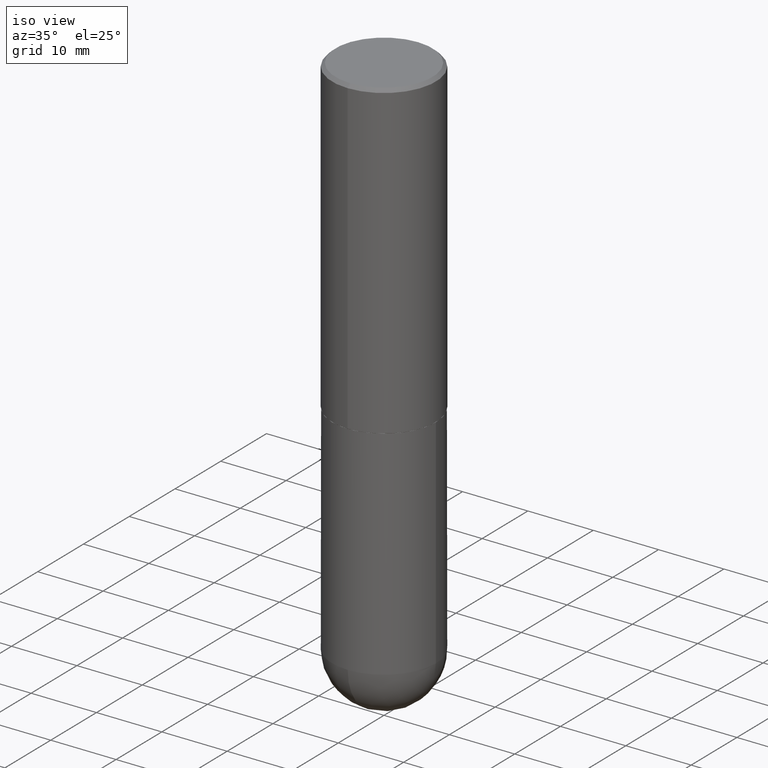
[diagram: clean part render]
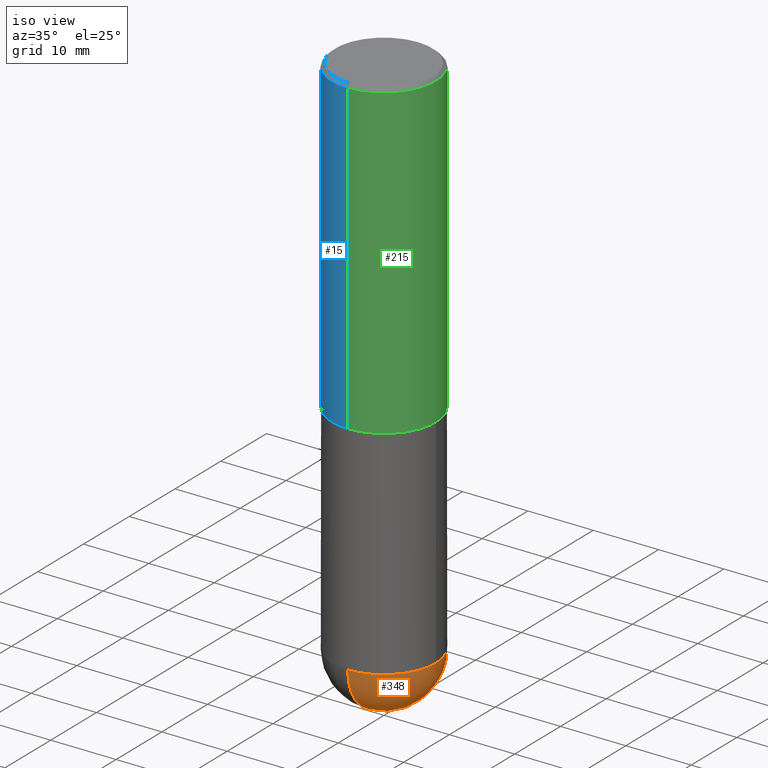
[diagram: same view with three faces highlighted in distinct colors, each labeled with its STEP entity id]
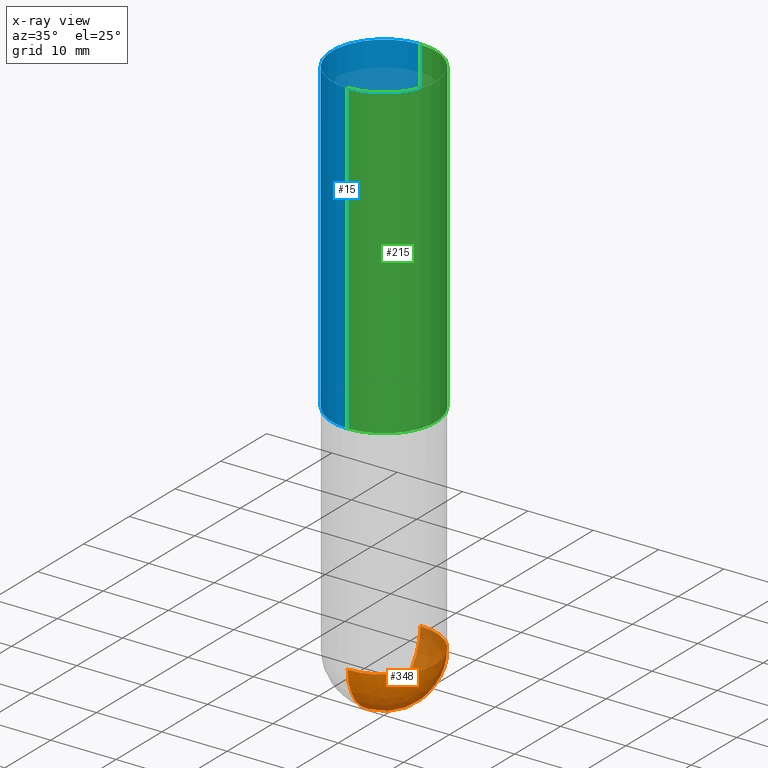
[diagram: x-ray of the same camera — body ghosted, the three highlighted faces saturated]
A machine part, iso view with three faces highlighted in distinct colors.
The next image is the same camera in x-ray (body ghosted, the three faces saturated) — at least one of them is partly hidden behind the body in this view.
Their STEP definitions:

[orange] entity #348 — the highlighted spherical surface has radius 7.9375 mm.
#7 = AXIS2_PLACEMENT_3D ( 'NONE', #32, #113, #191 ) ;
#13 = VERTEX_POINT ( 'NONE', #301 ) ;
#14 = DIRECTION ( 'NONE',  ( -1.000000000000000000, 6.982962677686265922E-15, -4.883557194083112901E-29 ) ) ;
#32 = CARTESIAN_POINT ( 'NONE',  ( 7.463812041801236655E-29, -1.160327913570257494E-14, -3.187500000000000000 ) ) ;
#42 = CARTESIAN_POINT ( 'NONE',  ( 7.463812041801236655E-29, -1.160327913570257494E-14, -3.187500000000000000 ) ) ;
#47 = VERTEX_POINT ( 'NONE', #154 ) ;
#62 = CARTESIAN_POINT ( 'NONE',  ( 7.463812041801236655E-29, -1.160327913570257494E-14, -3.187500000000000000 ) ) ;
#71 = VERTEX_POINT ( 'NONE', #120 ) ;
#87 = DIRECTION ( 'NONE',  ( 1.000000000000000000, -6.982962677686269077E-15, 0.000000000000000000 ) ) ;
#91 = EDGE_CURVE ( 'NONE', #71, #47, #135, .T. ) ;
#96 = AXIS2_PLACEMENT_3D ( 'NONE', #372, #169, #240 ) ;
#98 = FACE_OUTER_BOUND ( 'NONE', #211, .T. ) ;
#113 = DIRECTION ( 'NONE',  ( 1.000000000000000000, -6.982962677686265922E-15, 4.883557194083112340E-29 ) ) ;
#120 = CARTESIAN_POINT ( 'NONE',  ( -2.220446049250237350E-15, -0.3125000000000114908, -3.187499999999998668 ) ) ;
#121 = AXIS2_PLACEMENT_3D ( 'NONE', #62, #345, #186 ) ;
#135 = CIRCLE ( 'NONE', #264, 0.3125000000000000000 ) ;
#140 = EDGE_CURVE ( 'NONE', #276, #71, #379, .T. ) ;
#149 = EDGE_CURVE ( 'NONE', #276, #13, #179, .T. ) ;
#154 = CARTESIAN_POINT ( 'NONE',  ( 0.3125000000000000000, -1.101998797572367239E-14, -3.187500000000000000 ) ) ;
#169 = DIRECTION ( 'NONE',  ( -2.445468806185136597E-29, 3.491481338843145583E-15, 1.000000000000000000 ) ) ;
#170 = ORIENTED_EDGE ( 'NONE', *, *, #140, .F. ) ;
#173 = ORIENTED_EDGE ( 'NONE', *, *, #91, .F. ) ;
#179 = CIRCLE ( 'NONE', #7, 0.3125000000000002776 ) ;
#186 = DIRECTION ( 'NONE',  ( -7.105427357601000281E-15, -1.000000000000000000, 0.000000000000000000 ) ) ;
#191 = DIRECTION ( 'NONE',  ( 6.982962677686265922E-15, 1.000000000000000000, 0.000000000000000000 ) ) ;
#196 = CARTESIAN_POINT ( 'NONE',  ( 8.241383017002520278E-29, -1.267523194785438148E-14, -3.500000000000000444 ) ) ;
#211 = EDGE_LOOP ( 'NONE', ( #170, #359, #270, #173 ) ) ;
#240 = DIRECTION ( 'NONE',  ( 1.000000000000000000, -6.982962677686269077E-15, 0.000000000000000000 ) ) ;
#257 = DIRECTION ( 'NONE',  ( 6.982962677686265922E-15, 1.000000000000000000, -3.496765431890253764E-15 ) ) ;
#264 = AXIS2_PLACEMENT_3D ( 'NONE', #283, #286, #87 ) ;
#270 = ORIENTED_EDGE ( 'NONE', *, *, #392, .F. ) ;
#276 = VERTEX_POINT ( 'NONE', #196 ) ;
#283 = CARTESIAN_POINT ( 'NONE',  ( 7.794931819715121781E-29, -1.112909676756252622E-14, -3.187500000000000000 ) ) ;
#286 = DIRECTION ( 'NONE',  ( -2.445468806185136597E-29, 3.491481338843145583E-15, 1.000000000000000000 ) ) ;
#301 = CARTESIAN_POINT ( 'NONE',  ( 2.182175836777035261E-15, 0.3124999999999887867, -3.187500000000000888 ) ) ;
#308 = CIRCLE ( 'NONE', #96, 0.3125000000000000000 ) ;
#324 = SPHERICAL_SURFACE ( 'NONE', #401, 0.3125000000000002776 ) ;
#345 = DIRECTION ( 'NONE',  ( -1.000000000000000000, 7.105427357601001070E-15, -4.926315508542082329E-29 ) ) ;
#348 = ADVANCED_FACE ( 'NONE', ( #98 ), #324, .T. ) ;
#359 = ORIENTED_EDGE ( 'NONE', *, *, #149, .T. ) ;
#372 = CARTESIAN_POINT ( 'NONE',  ( 7.794931819715121781E-29, -1.112909676756252622E-14, -3.187500000000000000 ) ) ;
#379 = CIRCLE ( 'NONE', #121, 0.3125000000000002776 ) ;
#392 = EDGE_CURVE ( 'NONE', #47, #13, #308, .T. ) ;
#401 = AXIS2_PLACEMENT_3D ( 'NONE', #42, #14, #257 ) ;

[blue] entity #15 — the highlighted cylindrical surface (partial cylindrical patch) has radius 7.9375 mm, axis along (-0, 0, 1).
#8 = CIRCLE ( 'NONE', #352, 0.3125000000000000000 ) ;
#10 = DIRECTION ( 'NONE',  ( -2.444001851767069414E-29, 3.493582101063678231E-15, 1.000000000000000000 ) ) ;
#15 = ADVANCED_FACE ( 'NONE', ( #75 ), #204, .T. ) ;
#20 = EDGE_LOOP ( 'NONE', ( #309, #111, #304, #207 ) ) ;
#29 = CARTESIAN_POINT ( 'NONE',  ( -2.182175836776959136E-15, -0.3125000000000001665, 1.091744406582400014E-15 ) ) ;
#35 = CARTESIAN_POINT ( 'NONE',  ( 4.580059470211486852E-29, -6.546972857393332440E-15, -1.873999999999999666 ) ) ;
#41 = AXIS2_PLACEMENT_3D ( 'NONE', #35, #225, #114 ) ;
#68 = LINE ( 'NONE', #131, #213 ) ;
#75 = FACE_OUTER_BOUND ( 'NONE', #20, .T. ) ;
#80 = VERTEX_POINT ( 'NONE', #214 ) ;
#100 = VECTOR ( 'NONE', #150, 39.37007874015748143 ) ;
#111 = ORIENTED_EDGE ( 'NONE', *, *, #132, .T. ) ;
#114 = DIRECTION ( 'NONE',  ( -6.982962677686265922E-15, -1.000000000000000000, 3.496765431890254553E-15 ) ) ;
#131 = CARTESIAN_POINT ( 'NONE',  ( 2.220446049250313475E-15, 0.3125000000000001665, -1.091744406582400014E-15 ) ) ;
#132 = EDGE_CURVE ( 'NONE', #334, #373, #185, .T. ) ;
#143 = CARTESIAN_POINT ( 'NONE',  ( -2.182175836776913776E-15, -0.3125000000000067724, -1.873999999999998556 ) ) ;
#150 = DIRECTION ( 'NONE',  ( -2.444001851767069134E-29, 3.493582101063678231E-15, 1.000000000000000000 ) ) ;
#151 = EDGE_CURVE ( 'NONE', #373, #80, #384, .T. ) ;
#156 = DIRECTION ( 'NONE',  ( -6.982962677686265133E-15, -1.000000000000000000, 3.493582101063678231E-15 ) ) ;
#162 = DIRECTION ( 'NONE',  ( -6.982962677686265133E-15, -1.000000000000000000, 3.496765431890256920E-15 ) ) ;
#185 = CIRCLE ( 'NONE', #41, 0.3125000000000002220 ) ;
#204 = CYLINDRICAL_SURFACE ( 'NONE', #229, 0.3125000000000001665 ) ;
#207 = ORIENTED_EDGE ( 'NONE', *, *, #226, .F. ) ;
#213 = VECTOR ( 'NONE', #396, 39.37007874015748143 ) ;
#214 = CARTESIAN_POINT ( 'NONE',  ( -2.143905624303602824E-15, -0.3125000000000000555, -0.01999999999999897693 ) ) ;
#225 = DIRECTION ( 'NONE',  ( -2.444001851767069414E-29, 3.493582101063678231E-15, 1.000000000000000000 ) ) ;
#226 = EDGE_CURVE ( 'NONE', #235, #80, #8, .T. ) ;
#229 = AXIS2_PLACEMENT_3D ( 'NONE', #243, #253, #156 ) ;
#235 = VERTEX_POINT ( 'NONE', #390 ) ;
#243 = CARTESIAN_POINT ( 'NONE',  ( 0.000000000000000000, 0.000000000000000000, 0.000000000000000000 ) ) ;
#253 = DIRECTION ( 'NONE',  ( -2.444001851767069414E-29, 3.493582101063678231E-15, 1.000000000000000000 ) ) ;
#296 = CARTESIAN_POINT ( 'NONE',  ( 4.888003703534155364E-31, -6.987164202127379586E-17, -0.02000000000000006981 ) ) ;
#304 = ORIENTED_EDGE ( 'NONE', *, *, #151, .T. ) ;
#309 = ORIENTED_EDGE ( 'NONE', *, *, #362, .F. ) ;
#323 = CARTESIAN_POINT ( 'NONE',  ( 2.220446049250337141E-15, 0.3124999999999936717, -1.874000000000000776 ) ) ;
#334 = VERTEX_POINT ( 'NONE', #323 ) ;
#352 = AXIS2_PLACEMENT_3D ( 'NONE', #296, #10, #162 ) ;
#362 = EDGE_CURVE ( 'NONE', #334, #235, #68, .T. ) ;
#373 = VERTEX_POINT ( 'NONE', #143 ) ;
#384 = LINE ( 'NONE', #29, #100 ) ;
#390 = CARTESIAN_POINT ( 'NONE',  ( 2.182175836776958741E-15, 0.3124999999999999445, -0.02000000000000116268 ) ) ;
#396 = DIRECTION ( 'NONE',  ( -2.444001851767069134E-29, 3.493582101063678231E-15, 1.000000000000000000 ) ) ;

[green] entity #215 — the highlighted cylindrical surface (partial cylindrical patch) has radius 7.9375 mm, axis along (-0, 0, 1).
#12 = CARTESIAN_POINT ( 'NONE',  ( 0.000000000000000000, 0.000000000000000000, 0.000000000000000000 ) ) ;
#29 = CARTESIAN_POINT ( 'NONE',  ( -2.182175836776959136E-15, -0.3125000000000001665, 1.091744406582400014E-15 ) ) ;
#36 = EDGE_CURVE ( 'NONE', #373, #334, #127, .T. ) ;
#40 = DIRECTION ( 'NONE',  ( -2.444001851767069414E-29, 3.493582101063678231E-15, 1.000000000000000000 ) ) ;
#68 = LINE ( 'NONE', #131, #213 ) ;
#80 = VERTEX_POINT ( 'NONE', #214 ) ;
#81 = EDGE_LOOP ( 'NONE', ( #366, #241, #281, #355 ) ) ;
#92 = CYLINDRICAL_SURFACE ( 'NONE', #339, 0.3125000000000001665 ) ;
#94 = DIRECTION ( 'NONE',  ( -6.982962677686265133E-15, -1.000000000000000000, 3.493582101063678231E-15 ) ) ;
#100 = VECTOR ( 'NONE', #150, 39.37007874015748143 ) ;
#119 = DIRECTION ( 'NONE',  ( -2.444001851767069414E-29, 3.493582101063678231E-15, 1.000000000000000000 ) ) ;
#127 = CIRCLE ( 'NONE', #318, 0.3125000000000002220 ) ;
#131 = CARTESIAN_POINT ( 'NONE',  ( 2.220446049250313475E-15, 0.3125000000000001665, -1.091744406582400014E-15 ) ) ;
#133 = DIRECTION ( 'NONE',  ( -6.982962677686265133E-15, -1.000000000000000000, 3.496765431890256920E-15 ) ) ;
#143 = CARTESIAN_POINT ( 'NONE',  ( -2.182175836776913776E-15, -0.3125000000000067724, -1.873999999999998556 ) ) ;
#150 = DIRECTION ( 'NONE',  ( -2.444001851767069134E-29, 3.493582101063678231E-15, 1.000000000000000000 ) ) ;
#151 = EDGE_CURVE ( 'NONE', #373, #80, #384, .T. ) ;
#167 = CARTESIAN_POINT ( 'NONE',  ( 4.888003703534155364E-31, -6.987164202127379586E-17, -0.02000000000000006981 ) ) ;
#213 = VECTOR ( 'NONE', #396, 39.37007874015748143 ) ;
#214 = CARTESIAN_POINT ( 'NONE',  ( -2.143905624303602824E-15, -0.3125000000000000555, -0.01999999999999897693 ) ) ;
#215 = ADVANCED_FACE ( 'NONE', ( #292 ), #92, .T. ) ;
#217 = DIRECTION ( 'NONE',  ( -6.982962677686265922E-15, -1.000000000000000000, 3.496765431890254553E-15 ) ) ;
#235 = VERTEX_POINT ( 'NONE', #390 ) ;
#241 = ORIENTED_EDGE ( 'NONE', *, *, #362, .T. ) ;
#281 = ORIENTED_EDGE ( 'NONE', *, *, #409, .F. ) ;
#289 = CARTESIAN_POINT ( 'NONE',  ( 4.580059470211486852E-29, -6.546972857393332440E-15, -1.873999999999999666 ) ) ;
#292 = FACE_OUTER_BOUND ( 'NONE', #81, .T. ) ;
#298 = DIRECTION ( 'NONE',  ( -2.444001851767069414E-29, 3.493582101063678231E-15, 1.000000000000000000 ) ) ;
#318 = AXIS2_PLACEMENT_3D ( 'NONE', #289, #119, #217 ) ;
#323 = CARTESIAN_POINT ( 'NONE',  ( 2.220446049250337141E-15, 0.3124999999999936717, -1.874000000000000776 ) ) ;
#334 = VERTEX_POINT ( 'NONE', #323 ) ;
#339 = AXIS2_PLACEMENT_3D ( 'NONE', #12, #40, #94 ) ;
#355 = ORIENTED_EDGE ( 'NONE', *, *, #151, .F. ) ;
#360 = AXIS2_PLACEMENT_3D ( 'NONE', #167, #298, #133 ) ;
#362 = EDGE_CURVE ( 'NONE', #334, #235, #68, .T. ) ;
#366 = ORIENTED_EDGE ( 'NONE', *, *, #36, .T. ) ;
#373 = VERTEX_POINT ( 'NONE', #143 ) ;
#380 = CIRCLE ( 'NONE', #360, 0.3125000000000000000 ) ;
#384 = LINE ( 'NONE', #29, #100 ) ;
#390 = CARTESIAN_POINT ( 'NONE',  ( 2.182175836776958741E-15, 0.3124999999999999445, -0.02000000000000116268 ) ) ;
#396 = DIRECTION ( 'NONE',  ( -2.444001851767069134E-29, 3.493582101063678231E-15, 1.000000000000000000 ) ) ;
#409 = EDGE_CURVE ( 'NONE', #80, #235, #380, .T. ) ;